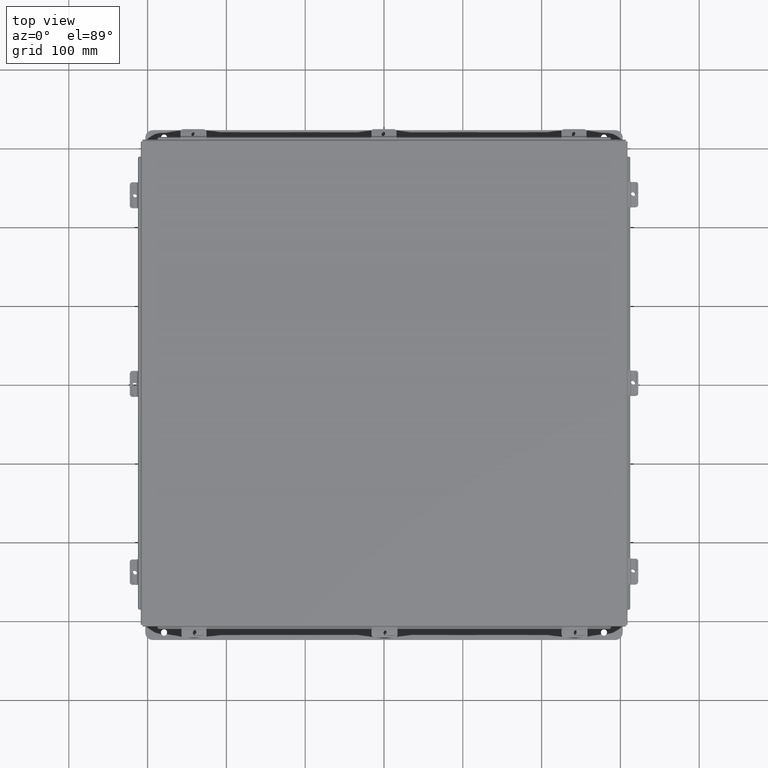
[diagram: clean part render]
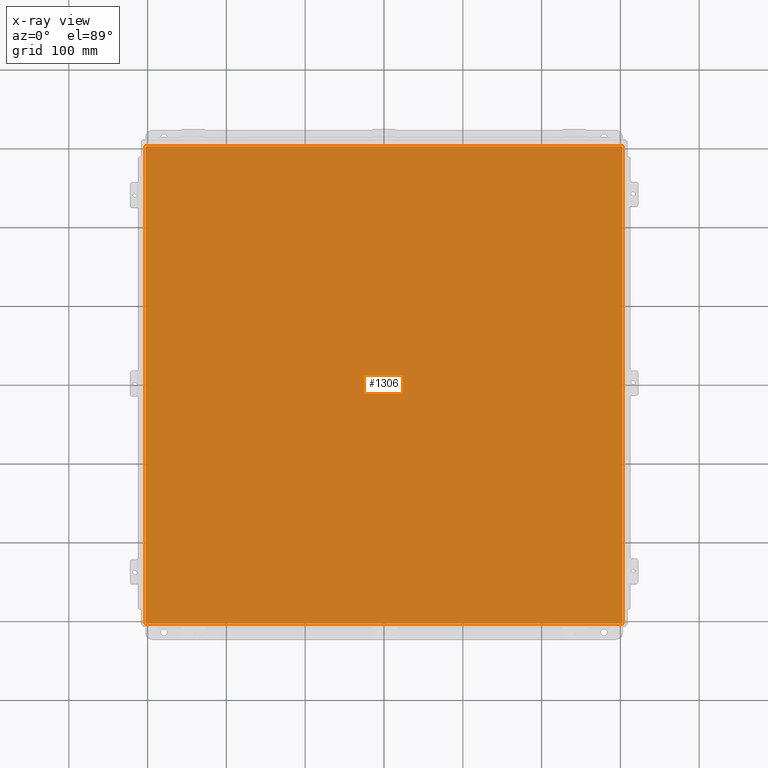
[diagram: x-ray — body ghosted, one internal face saturated and labeled with its STEP entity id]
A machine part, top view, then the same camera in x-ray: the body is ghosted and one INTERNAL B-rep face — a face not visible from any outside direction — is saturated and labeled: STEP entity #1306.
In plain terms, the highlighted planar face has unit normal (0, 0, -1).
Its self-contained STEP definition (entity closure, byte-faithful):
#278 = CARTESIAN_POINT ( 'NONE',  ( 11.91230000000000000, 11.92529999999999800, 4.268512490100411300E-017 ) ) ;
#371 = VECTOR ( 'NONE', #3684, 39.37007874015748100 ) ;
#587 = EDGE_CURVE ( 'NONE', #5931, #1650, #9627, .T. ) ;
#1132 = CARTESIAN_POINT ( 'NONE',  ( -11.91230000000000000, -11.92529999999999800, 4.268512490100411300E-017 ) ) ;
#1194 = CARTESIAN_POINT ( 'NONE',  ( -11.91230000000000000, -11.92530000000000000, 4.268512490100411300E-017 ) ) ;
#1306 = ADVANCED_FACE ( 'NONE', ( #9085 ), #9559, .F. ) ;
#1650 = VERTEX_POINT ( 'NONE', #7174 ) ;
#2259 = LINE ( 'NONE', #3817, #371 ) ;
#2563 = VERTEX_POINT ( 'NONE', #278 ) ;
#3000 = ORIENTED_EDGE ( 'NONE', *, *, #587, .F. ) ;
#3002 = DIRECTION ( 'NONE',  ( -1.000000000000000000, -0.0000000000000000000, -0.0000000000000000000 ) ) ;
#3006 = LINE ( 'NONE', #3071, #10018 ) ;
#3071 = CARTESIAN_POINT ( 'NONE',  ( -12.00000000000000200, 11.92530000000000000, 0.0000000000000000000 ) ) ;
#3684 = DIRECTION ( 'NONE',  ( -0.0000000000000000000, -1.000000000000000000, -0.0000000000000000000 ) ) ;
#3817 = CARTESIAN_POINT ( 'NONE',  ( 11.91230000000000000, 11.92530000000000000, 4.268512490100411300E-017 ) ) ;
#4182 = DIRECTION ( 'NONE',  ( -1.000000000000000000, 0.0000000000000000000, -0.0000000000000000000 ) ) ;
#4235 = EDGE_CURVE ( 'NONE', #2563, #1650, #3006, .T. ) ;
#5317 = LINE ( 'NONE', #7424, #6276 ) ;
#5460 = VECTOR ( 'NONE', #9750, 39.37007874015748100 ) ;
#5631 = AXIS2_PLACEMENT_3D ( 'NONE', #8100, #9733, #4182 ) ;
#5648 = EDGE_LOOP ( 'NONE', ( #7230, #8418, #3000, #6568 ) ) ;
#5868 = EDGE_CURVE ( 'NONE', #5931, #6734, #5317, .T. ) ;
#5931 = VERTEX_POINT ( 'NONE', #1132 ) ;
#6160 = CARTESIAN_POINT ( 'NONE',  ( 11.91230000000000000, -11.92530000000000000, 4.268512490100411300E-017 ) ) ;
#6276 = VECTOR ( 'NONE', #8095, 39.37007874015748100 ) ;
#6411 = EDGE_CURVE ( 'NONE', #2563, #6734, #2259, .T. ) ;
#6568 = ORIENTED_EDGE ( 'NONE', *, *, #5868, .T. ) ;
#6734 = VERTEX_POINT ( 'NONE', #6160 ) ;
#7174 = CARTESIAN_POINT ( 'NONE',  ( -11.91230000000000000, 11.92530000000000000, 4.268512490100411300E-017 ) ) ;
#7230 = ORIENTED_EDGE ( 'NONE', *, *, #6411, .F. ) ;
#7424 = CARTESIAN_POINT ( 'NONE',  ( -12.00000000000000200, -11.92530000000000000, 0.0000000000000000000 ) ) ;
#8095 = DIRECTION ( 'NONE',  ( 1.000000000000000000, 0.0000000000000000000, 0.0000000000000000000 ) ) ;
#8100 = CARTESIAN_POINT ( 'NONE',  ( 0.0000000000000000000, 0.0000000000000000000, 0.0000000000000000000 ) ) ;
#8418 = ORIENTED_EDGE ( 'NONE', *, *, #4235, .T. ) ;
#9085 = FACE_OUTER_BOUND ( 'NONE', #5648, .T. ) ;
#9559 = PLANE ( 'NONE',  #5631 ) ;
#9627 = LINE ( 'NONE', #1194, #5460 ) ;
#9733 = DIRECTION ( 'NONE',  ( 0.0000000000000000000, 0.0000000000000000000, -1.000000000000000000 ) ) ;
#9750 = DIRECTION ( 'NONE',  ( -0.0000000000000000000, 1.000000000000000000, -0.0000000000000000000 ) ) ;
#10018 = VECTOR ( 'NONE', #3002, 39.37007874015748100 ) ;